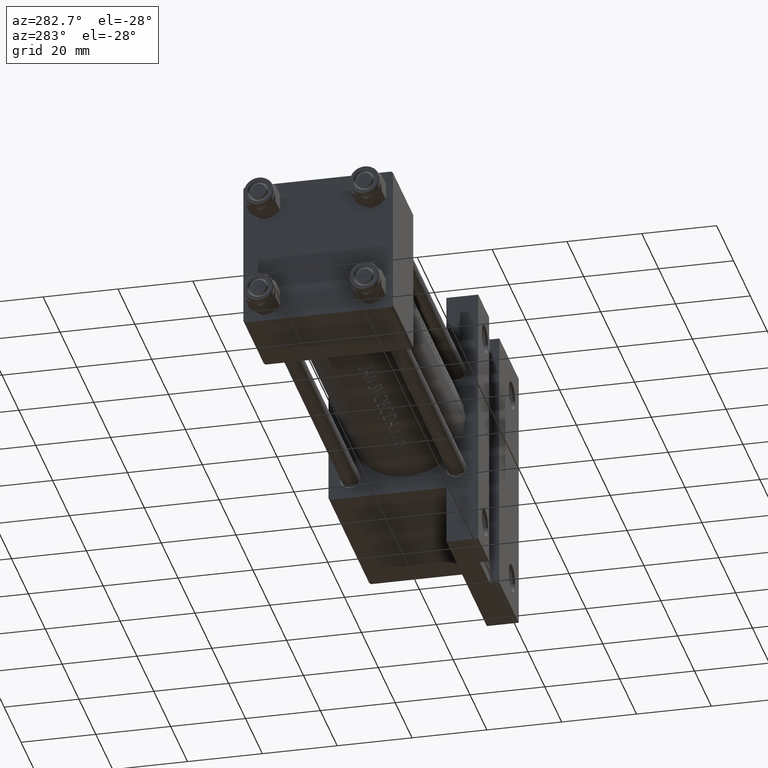
[diagram: clean part render]
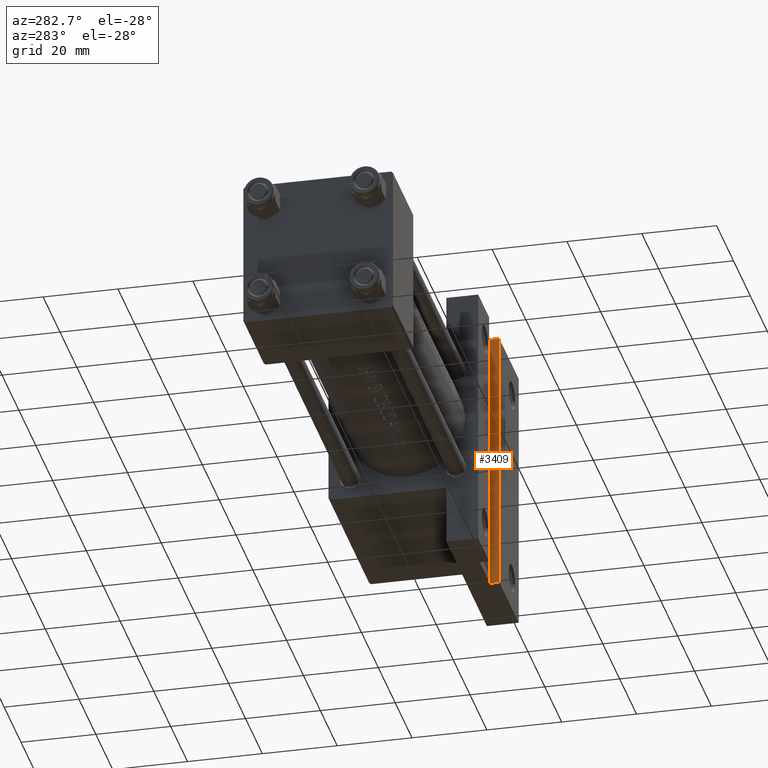
[diagram: same view with one face highlighted and labeled with its STEP entity id]
A machine part, auxiliary view. The second image highlights one B-rep face of the part: STEP entity #3409.
In plain terms, the highlighted planar face has unit normal (1, 0, 0).
Its self-contained STEP definition (entity closure, byte-faithful):
#2910 = ORIENTED_EDGE ( 'NONE', *, *, #45599, .F. ) ;
#3409 = ADVANCED_FACE ( 'NONE', ( #16602 ), #5048, .F. ) ;
#5048 = PLANE ( 'NONE',  #20654 ) ;
#5803 = VERTEX_POINT ( 'NONE', #44257 ) ;
#5925 = EDGE_LOOP ( 'NONE', ( #11781, #2910, #20509, #18481 ) ) ;
#9099 = LINE ( 'NONE', #12000, #18041 ) ;
#9374 = DIRECTION ( 'NONE',  ( 0.000000000000000000, 0.000000000000000000, -1.000000000000000000 ) ) ;
#11455 = CARTESIAN_POINT ( 'NONE',  ( 125.9999999999999716, -35.99999999999997868, -20.00000000000000000 ) ) ;
#11781 = ORIENTED_EDGE ( 'NONE', *, *, #44650, .T. ) ;
#12000 = CARTESIAN_POINT ( 'NONE',  ( 125.9999999999999716, -35.99999999999997868, -20.00000000000000000 ) ) ;
#13429 = VECTOR ( 'NONE', #27229, 1000.000000000000000 ) ;
#13436 = LINE ( 'NONE', #21352, #44642 ) ;
#16602 = FACE_OUTER_BOUND ( 'NONE', #5925, .T. ) ;
#18041 = VECTOR ( 'NONE', #38496, 1000.000000000000000 ) ;
#18481 = ORIENTED_EDGE ( 'NONE', *, *, #29978, .T. ) ;
#19763 = CARTESIAN_POINT ( 'NONE',  ( 125.9999999999999716, -35.99999999999997868, -17.50000000000000000 ) ) ;
#20509 = ORIENTED_EDGE ( 'NONE', *, *, #39529, .F. ) ;
#20654 = AXIS2_PLACEMENT_3D ( 'NONE', #38293, #34915, #9374 ) ;
#20820 = DIRECTION ( 'NONE',  ( -0.000000000000000000, -1.000000000000000000, -0.000000000000000000 ) ) ;
#21352 = CARTESIAN_POINT ( 'NONE',  ( 125.9999999999999716, 35.99999999999998579, -17.50000000000000000 ) ) ;
#27229 = DIRECTION ( 'NONE',  ( -0.000000000000000000, -0.000000000000000000, -1.000000000000000000 ) ) ;
#28757 = CARTESIAN_POINT ( 'NONE',  ( 125.9999999999999716, -35.99999999999997868, -17.50000000000000000 ) ) ;
#28825 = LINE ( 'NONE', #19763, #13429 ) ;
#29978 = EDGE_CURVE ( 'NONE', #45880, #5803, #13436, .T. ) ;
#33987 = CARTESIAN_POINT ( 'NONE',  ( 125.9999999999999716, -36.00000000000000711, -17.50000000000000000 ) ) ;
#34915 = DIRECTION ( 'NONE',  ( 1.000000000000000000, 0.000000000000000000, 0.000000000000000000 ) ) ;
#35361 = DIRECTION ( 'NONE',  ( -0.000000000000000000, -0.000000000000000000, -1.000000000000000000 ) ) ;
#35368 = VERTEX_POINT ( 'NONE', #11455 ) ;
#36001 = LINE ( 'NONE', #28757, #40958 ) ;
#38293 = CARTESIAN_POINT ( 'NONE',  ( 125.9999999999999716, -35.99999999999997868, -17.50000000000000000 ) ) ;
#38496 = DIRECTION ( 'NONE',  ( -0.000000000000000000, -1.000000000000000000, -0.000000000000000000 ) ) ;
#39529 = EDGE_CURVE ( 'NONE', #45880, #46593, #36001, .T. ) ;
#40958 = VECTOR ( 'NONE', #20820, 1000.000000000000000 ) ;
#43242 = CARTESIAN_POINT ( 'NONE',  ( 125.9999999999999716, 35.99999999999998579, -17.50000000000000000 ) ) ;
#44257 = CARTESIAN_POINT ( 'NONE',  ( 125.9999999999999716, 35.99999999999998579, -20.00000000000000000 ) ) ;
#44642 = VECTOR ( 'NONE', #35361, 1000.000000000000000 ) ;
#44650 = EDGE_CURVE ( 'NONE', #5803, #35368, #9099, .T. ) ;
#45599 = EDGE_CURVE ( 'NONE', #46593, #35368, #28825, .T. ) ;
#45880 = VERTEX_POINT ( 'NONE', #43242 ) ;
#46593 = VERTEX_POINT ( 'NONE', #33987 ) ;